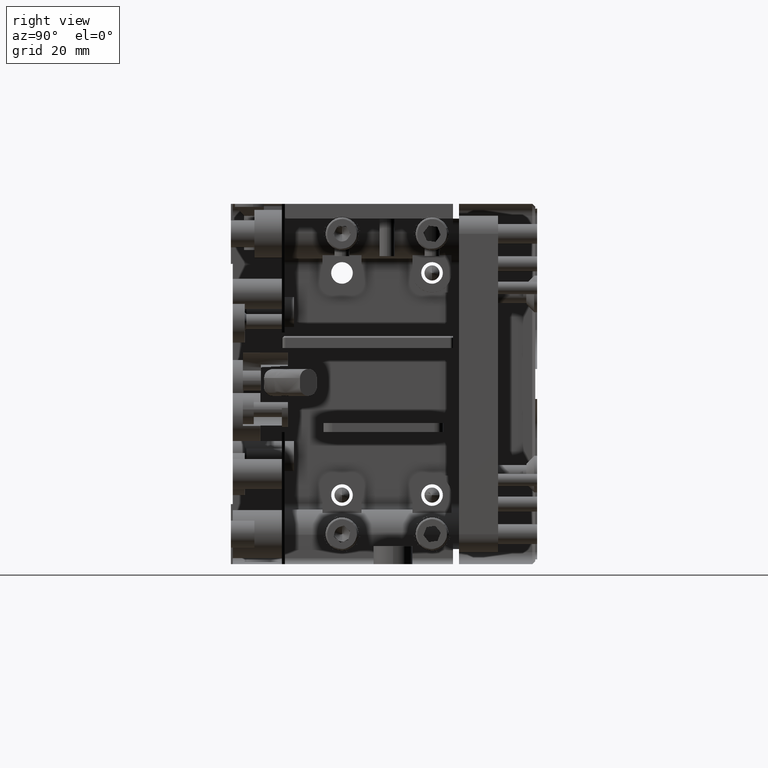
[diagram: clean part render]
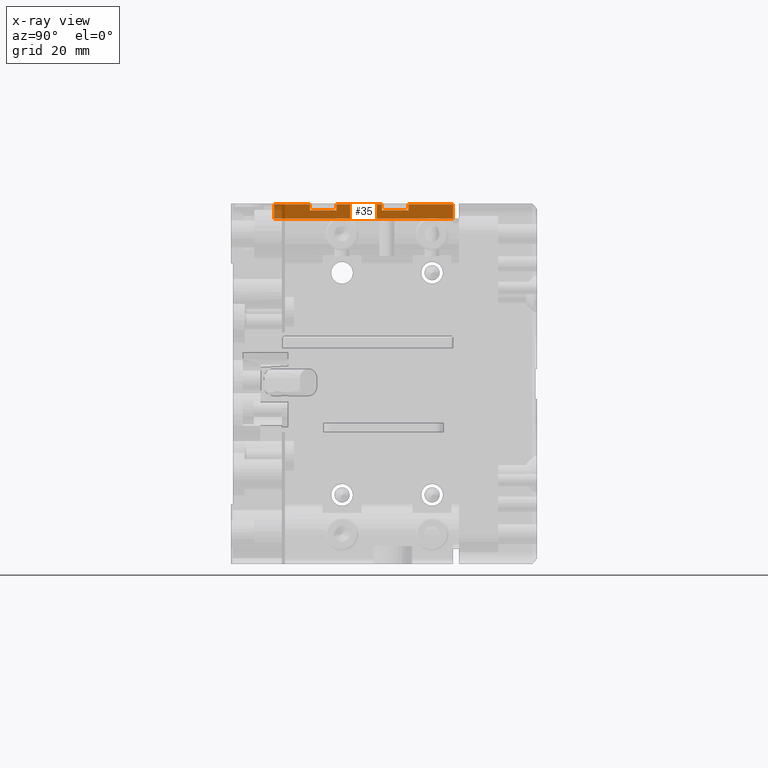
[diagram: x-ray — body ghosted, one internal face saturated and labeled with its STEP entity id]
A machine part, right view, then the same camera in x-ray: the body is ghosted and one INTERNAL B-rep face — a face not visible from any outside direction — is saturated and labeled: STEP entity #35.
In plain terms, the highlighted planar face has unit normal (1, 0, -0).
Its self-contained STEP definition (entity closure, byte-faithful):
#35 = ADVANCED_FACE ( 'NONE', ( #25096 ), #29106, .T. ) ;
#231 = CARTESIAN_POINT ( 'NONE',  ( -13.15000000000000568, 8.499999999999998224, 29.89999999999999503 ) ) ;
#489 = VERTEX_POINT ( 'NONE', #27713 ) ;
#506 = CARTESIAN_POINT ( 'NONE',  ( -13.15000000000000568, 7.200000000000000178, 29.89999999999999858 ) ) ;
#811 = CARTESIAN_POINT ( 'NONE',  ( -13.15000000000000568, 8.499999999999998224, 29.89999999999999503 ) ) ;
#872 = EDGE_CURVE ( 'NONE', #3732, #11351, #27042, .T. ) ;
#1838 = ORIENTED_EDGE ( 'NONE', *, *, #11119, .F. ) ;
#3482 = VECTOR ( 'NONE', #13405, 1000.000000000000000 ) ;
#3732 = VERTEX_POINT ( 'NONE', #20633 ) ;
#3885 = ORIENTED_EDGE ( 'NONE', *, *, #13569, .F. ) ;
#3965 = CARTESIAN_POINT ( 'NONE',  ( -13.15000000000000391, 17.54999999999999716, 29.89999999999999503 ) ) ;
#4379 = LINE ( 'NONE', #231, #3482 ) ;
#4474 = LINE ( 'NONE', #9211, #9397 ) ;
#4983 = LINE ( 'NONE', #5420, #21337 ) ;
#5033 = VERTEX_POINT ( 'NONE', #10217 ) ;
#5069 = CARTESIAN_POINT ( 'NONE',  ( -13.15000000000000568, 17.54999999999999716, 65.90891254271006972 ) ) ;
#5420 = CARTESIAN_POINT ( 'NONE',  ( -13.15000000000000746, 29.55000000000000426, 65.90891254271006972 ) ) ;
#5763 = CARTESIAN_POINT ( 'NONE',  ( -13.15000000000000391, 25.15000000000000568, 29.89999999999999503 ) ) ;
#5963 = ORIENTED_EDGE ( 'NONE', *, *, #16934, .F. ) ;
#6551 = VECTOR ( 'NONE', #19296, 1000.000000000000000 ) ;
#6964 = DIRECTION ( 'NONE',  ( 1.662674258124734676E-16, -1.000000000000000000, -0.000000000000000000 ) ) ;
#7163 = ORIENTED_EDGE ( 'NONE', *, *, #17964, .T. ) ;
#7212 = EDGE_LOOP ( 'NONE', ( #18526, #5963, #3885, #23365, #20698, #10109, #18635, #7163, #18038, #10338, #1838, #24379 ) ) ;
#7339 = DIRECTION ( 'NONE',  ( 0.000000000000000000, 1.000000000000000000, 0.000000000000000000 ) ) ;
#7474 = EDGE_CURVE ( 'NONE', #21804, #28727, #28515, .T. ) ;
#7758 = VECTOR ( 'NONE', #20771, 1000.000000000000000 ) ;
#8511 = VECTOR ( 'NONE', #15727, 1000.000000000000000 ) ;
#9211 = CARTESIAN_POINT ( 'NONE',  ( -13.15000000000000924, 37.00000000000000711, 65.90891254271006972 ) ) ;
#9397 = VECTOR ( 'NONE', #22393, 1000.000000000000000 ) ;
#9483 = CARTESIAN_POINT ( 'NONE',  ( -13.15000000000000746, 25.14999999999999858, 65.90891254271006972 ) ) ;
#9793 = LINE ( 'NONE', #5069, #7758 ) ;
#10109 = ORIENTED_EDGE ( 'NONE', *, *, #25909, .T. ) ;
#10217 = CARTESIAN_POINT ( 'NONE',  ( -13.15000000000000391, 13.15000000000000036, 28.89999999999999503 ) ) ;
#10243 = CARTESIAN_POINT ( 'NONE',  ( -13.15000000000000391, 7.199999999999998401, 65.90891254271006972 ) ) ;
#10338 = ORIENTED_EDGE ( 'NONE', *, *, #25839, .T. ) ;
#10835 = VECTOR ( 'NONE', #27147, 1000.000000000000000 ) ;
#11119 = EDGE_CURVE ( 'NONE', #24996, #24507, #4379, .T. ) ;
#11174 = VERTEX_POINT ( 'NONE', #506 ) ;
#11351 = VERTEX_POINT ( 'NONE', #11595 ) ;
#11423 = CARTESIAN_POINT ( 'NONE',  ( -13.15000000000000924, 37.00000000000000711, 28.89999999999999503 ) ) ;
#11489 = EDGE_CURVE ( 'NONE', #24996, #20726, #9793, .T. ) ;
#11595 = CARTESIAN_POINT ( 'NONE',  ( -13.15000000000000746, 37.00000000000000711, 29.89999999999999858 ) ) ;
#12777 = CARTESIAN_POINT ( 'NONE',  ( -13.15000000000000391, 7.199999999999998401, 27.49999999999999645 ) ) ;
#12799 = VERTEX_POINT ( 'NONE', #13329 ) ;
#13329 = CARTESIAN_POINT ( 'NONE',  ( -13.15000000000000746, 29.55000000000000426, 28.89999999999999503 ) ) ;
#13405 = DIRECTION ( 'NONE',  ( 0.000000000000000000, 1.000000000000000000, 0.000000000000000000 ) ) ;
#13406 = CARTESIAN_POINT ( 'NONE',  ( -13.15000000000000568, 8.499999999999998224, 29.89999999999999503 ) ) ;
#13569 = EDGE_CURVE ( 'NONE', #11174, #26819, #27641, .T. ) ;
#15220 = VECTOR ( 'NONE', #25821, 1000.000000000000000 ) ;
#15727 = DIRECTION ( 'NONE',  ( 1.662674258124734676E-16, -1.000000000000000000, -0.000000000000000000 ) ) ;
#16791 = CARTESIAN_POINT ( 'NONE',  ( -13.15000000000000568, 13.14999999999999858, 24.04587804026309072 ) ) ;
#16934 = EDGE_CURVE ( 'NONE', #26819, #5033, #28047, .T. ) ;
#17100 = VECTOR ( 'NONE', #6964, 1000.000000000000000 ) ;
#17964 = EDGE_CURVE ( 'NONE', #3732, #12799, #4983, .T. ) ;
#18038 = ORIENTED_EDGE ( 'NONE', *, *, #19753, .T. ) ;
#18526 = ORIENTED_EDGE ( 'NONE', *, *, #27000, .T. ) ;
#18635 = ORIENTED_EDGE ( 'NONE', *, *, #872, .F. ) ;
#19296 = DIRECTION ( 'NONE',  ( -0.000000000000000000, -0.000000000000000000, -1.000000000000000000 ) ) ;
#19753 = EDGE_CURVE ( 'NONE', #12799, #489, #22656, .T. ) ;
#20291 = CARTESIAN_POINT ( 'NONE',  ( -13.15000000000000924, 37.00000000000000711, 28.89999999999999503 ) ) ;
#20467 = LINE ( 'NONE', #9483, #10835 ) ;
#20633 = CARTESIAN_POINT ( 'NONE',  ( -13.15000000000000391, 29.55000000000000782, 29.89999999999999503 ) ) ;
#20698 = ORIENTED_EDGE ( 'NONE', *, *, #7474, .T. ) ;
#20726 = VERTEX_POINT ( 'NONE', #24494 ) ;
#20771 = DIRECTION ( 'NONE',  ( -0.000000000000000000, -0.000000000000000000, -1.000000000000000000 ) ) ;
#21114 = DIRECTION ( 'NONE',  ( -0.000000000000000000, -0.000000000000000000, -1.000000000000000000 ) ) ;
#21337 = VECTOR ( 'NONE', #21114, 1000.000000000000000 ) ;
#21804 = VERTEX_POINT ( 'NONE', #12777 ) ;
#21874 = VECTOR ( 'NONE', #25717, 1000.000000000000000 ) ;
#22273 = CARTESIAN_POINT ( 'NONE',  ( -13.15000000000000924, 37.00000000000000711, 65.90891254271006972 ) ) ;
#22393 = DIRECTION ( 'NONE',  ( 0.000000000000000000, 0.000000000000000000, 1.000000000000000000 ) ) ;
#22656 = LINE ( 'NONE', #20291, #17100 ) ;
#22768 = CARTESIAN_POINT ( 'NONE',  ( -13.15000000000000924, 37.00000000000000711, 27.49999999999999645 ) ) ;
#22816 = VECTOR ( 'NONE', #7339, 1000.000000000000000 ) ;
#23365 = ORIENTED_EDGE ( 'NONE', *, *, #25631, .T. ) ;
#23540 = VECTOR ( 'NONE', #26892, 1000.000000000000000 ) ;
#23731 = LINE ( 'NONE', #10243, #6551 ) ;
#24379 = ORIENTED_EDGE ( 'NONE', *, *, #11489, .T. ) ;
#24494 = CARTESIAN_POINT ( 'NONE',  ( -13.15000000000000391, 17.54999999999999716, 28.89999999999999503 ) ) ;
#24507 = VERTEX_POINT ( 'NONE', #5763 ) ;
#24859 = AXIS2_PLACEMENT_3D ( 'NONE', #22273, #29242, #27465 ) ;
#24996 = VERTEX_POINT ( 'NONE', #3965 ) ;
#25096 = FACE_OUTER_BOUND ( 'NONE', #7212, .T. ) ;
#25631 = EDGE_CURVE ( 'NONE', #11174, #21804, #23731, .T. ) ;
#25717 = DIRECTION ( 'NONE',  ( -1.662674258124734676E-16, 1.000000000000000000, 0.000000000000000000 ) ) ;
#25821 = DIRECTION ( 'NONE',  ( 0.000000000000000000, -0.000000000000000000, -1.000000000000000000 ) ) ;
#25839 = EDGE_CURVE ( 'NONE', #489, #24507, #20467, .T. ) ;
#25909 = EDGE_CURVE ( 'NONE', #28727, #11351, #4474, .T. ) ;
#25988 = CARTESIAN_POINT ( 'NONE',  ( -13.15000000000000924, 37.00000000000000711, 27.49999999999999645 ) ) ;
#26819 = VERTEX_POINT ( 'NONE', #28916 ) ;
#26846 = LINE ( 'NONE', #11423, #8511 ) ;
#26892 = DIRECTION ( 'NONE',  ( 0.000000000000000000, 1.000000000000000000, 0.000000000000000000 ) ) ;
#27000 = EDGE_CURVE ( 'NONE', #20726, #5033, #26846, .T. ) ;
#27042 = LINE ( 'NONE', #13406, #23540 ) ;
#27147 = DIRECTION ( 'NONE',  ( 0.000000000000000000, 0.000000000000000000, 1.000000000000000000 ) ) ;
#27465 = DIRECTION ( 'NONE',  ( -1.662674258124734676E-16, 1.000000000000000000, 0.000000000000000000 ) ) ;
#27641 = LINE ( 'NONE', #811, #22816 ) ;
#27713 = CARTESIAN_POINT ( 'NONE',  ( -13.15000000000000746, 25.14999999999999503, 28.89999999999999503 ) ) ;
#28047 = LINE ( 'NONE', #16791, #15220 ) ;
#28515 = LINE ( 'NONE', #25988, #21874 ) ;
#28727 = VERTEX_POINT ( 'NONE', #22768 ) ;
#28916 = CARTESIAN_POINT ( 'NONE',  ( -13.15000000000000391, 13.15000000000000036, 29.89999999999999503 ) ) ;
#29106 = PLANE ( 'NONE',  #24859 ) ;
#29242 = DIRECTION ( 'NONE',  ( 1.000000000000000000, 1.662674258124734676E-16, -0.000000000000000000 ) ) ;